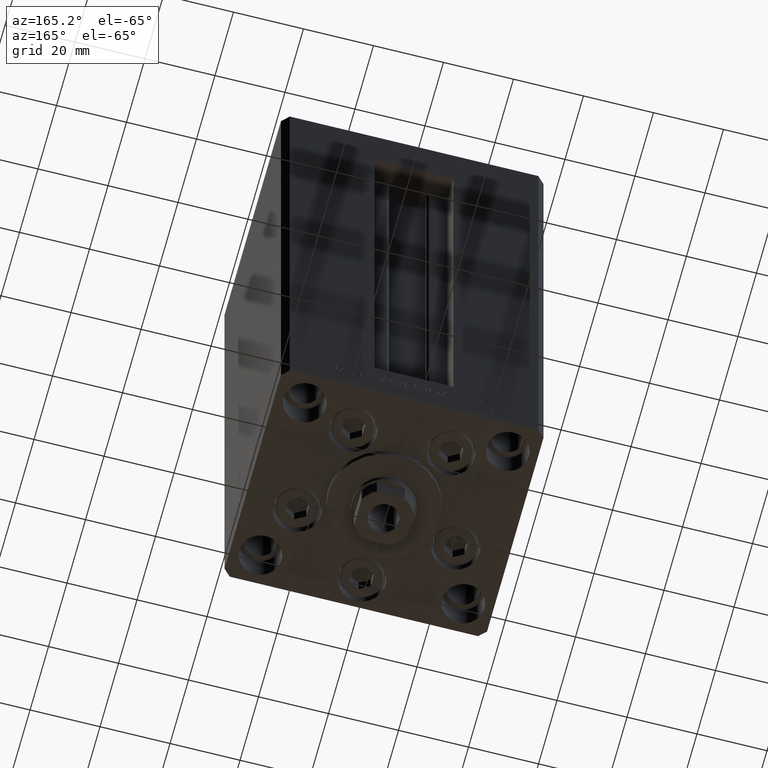
[diagram: clean part render]
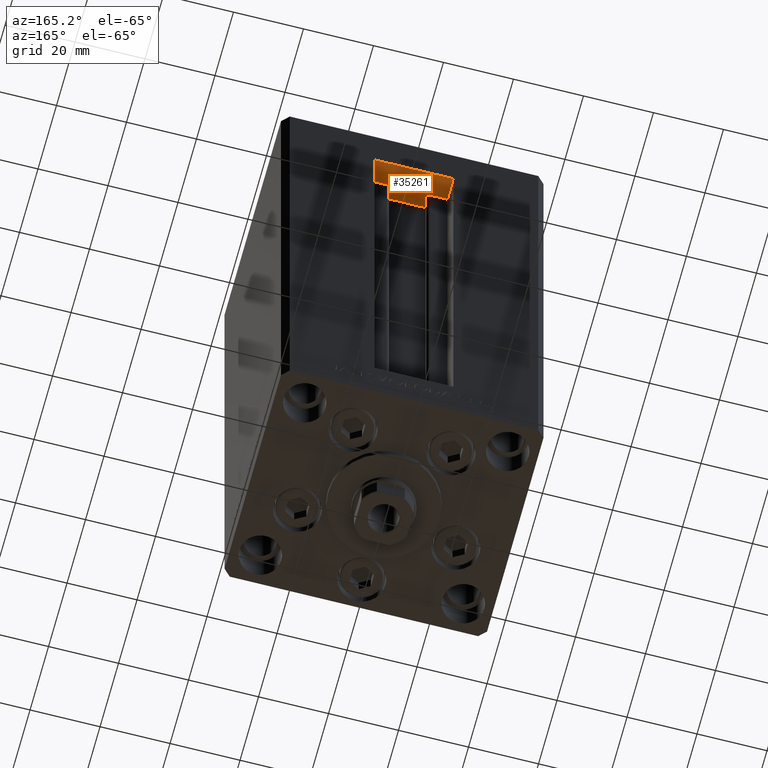
[diagram: same view with one face highlighted and labeled with its STEP entity id]
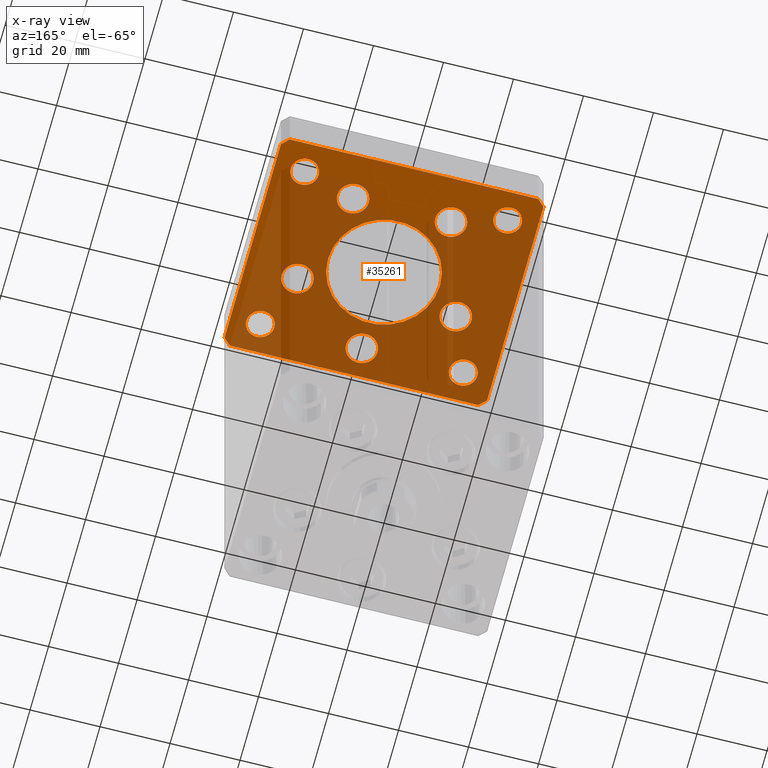
[diagram: x-ray of the same camera — body ghosted, the highlighted face saturated]
A machine part, auxiliary view. The second image highlights one B-rep face of the part: STEP entity #35261.
The next image is the same camera in x-ray: the body ghosted, the highlighted face saturated — about 77% of this face is hidden behind the body in this view.
In plain terms, the highlighted planar face has unit normal (0, 0, 1).
Its self-contained STEP definition (entity closure, byte-faithful):
#49 = AXIS2_PLACEMENT_3D ( 'NONE', #26392, #18693, #46546 ) ;
#139 = CARTESIAN_POINT ( 'NONE',  ( 22.62741699796951877, -8.000000000000000000, -15.00000000000000000 ) ) ;
#154 = VERTEX_POINT ( 'NONE', #37610 ) ;
#199 = EDGE_CURVE ( 'NONE', #5427, #10431, #48933, .T. ) ;
#204 = EDGE_LOOP ( 'NONE', ( #32912, #45288 ) ) ;
#280 = DIRECTION ( 'NONE',  ( -1.000000000000000000, 0.000000000000000000, 0.000000000000000000 ) ) ;
#317 = CARTESIAN_POINT ( 'NONE',  ( -37.49999999999998579, -30.50000000000001421, -15.00000000000000000 ) ) ;
#909 = CARTESIAN_POINT ( 'NONE',  ( 37.49999999999992184, 30.50000000000001066, -15.00000000000000000 ) ) ;
#1202 = DIRECTION ( 'NONE',  ( 1.000000000000000000, 0.000000000000000000, 0.000000000000000000 ) ) ;
#1955 = EDGE_LOOP ( 'NONE', ( #11314, #47684 ) ) ;
#2039 = AXIS2_PLACEMENT_3D ( 'NONE', #139, #48379, #29602 ) ;
#2178 = LINE ( 'NONE', #2912, #39504 ) ;
#2912 = CARTESIAN_POINT ( 'NONE',  ( -35.49999999999998579, -32.50000000000001421, -15.00000000000000000 ) ) ;
#3170 = CARTESIAN_POINT ( 'NONE',  ( -35.50000000000002842, 32.49999999999999289, -15.00000000000000000 ) ) ;
#3202 = AXIS2_PLACEMENT_3D ( 'NONE', #6674, #21777, #36882 ) ;
#3216 = DIRECTION ( 'NONE',  ( 0.000000000000000000, 0.000000000000000000, 1.000000000000000000 ) ) ;
#3297 = ORIENTED_EDGE ( 'NONE', *, *, #4335, .F. ) ;
#3570 = ORIENTED_EDGE ( 'NONE', *, *, #3999, .F. ) ;
#3633 = CARTESIAN_POINT ( 'NONE',  ( 35.50000000000000711, -32.50000000000000711, -15.00000000000000000 ) ) ;
#3698 = LINE ( 'NONE', #41801, #47641 ) ;
#3887 = ORIENTED_EDGE ( 'NONE', *, *, #29686, .F. ) ;
#3968 = DIRECTION ( 'NONE',  ( 0.000000000000000000, -0.000000000000000000, -1.000000000000000000 ) ) ;
#3999 = EDGE_CURVE ( 'NONE', #154, #41347, #8752, .T. ) ;
#4009 = CIRCLE ( 'NONE', #49, 16.00000000000000000 ) ;
#4069 = CARTESIAN_POINT ( 'NONE',  ( -27.12741699796951877, -8.000000000000005329, -15.00000000000000000 ) ) ;
#4335 = EDGE_CURVE ( 'NONE', #47496, #46773, #12701, .T. ) ;
#4649 = CARTESIAN_POINT ( 'NONE',  ( 35.49999999999992184, 32.50000000000000711, -15.00000000000000000 ) ) ;
#4850 = VERTEX_POINT ( 'NONE', #22326 ) ;
#5427 = VERTEX_POINT ( 'NONE', #47354 ) ;
#5437 = VERTEX_POINT ( 'NONE', #42923 ) ;
#5804 = CARTESIAN_POINT ( 'NONE',  ( -33.00000000000000711, -23.99999999999999289, -15.00000000000000000 ) ) ;
#5875 = CARTESIAN_POINT ( 'NONE',  ( 2.939152317953647500E-15, -24.00000000000000000, -15.00000000000000000 ) ) ;
#5935 = VERTEX_POINT ( 'NONE', #44205 ) ;
#5945 = EDGE_CURVE ( 'NONE', #41347, #154, #35569, .T. ) ;
#5983 = CARTESIAN_POINT ( 'NONE',  ( -25.00000000000001066, 24.00000000000000711, -15.00000000000000000 ) ) ;
#6285 = EDGE_LOOP ( 'NONE', ( #12722, #39286 ) ) ;
#6510 = CARTESIAN_POINT ( 'NONE',  ( 29.00000000000001066, 24.00000000000000711, -15.00000000000000000 ) ) ;
#6674 = CARTESIAN_POINT ( 'NONE',  ( -13.99106857963322703, 19.49999999999999645, -15.00000000000000000 ) ) ;
#6801 = CIRCLE ( 'NONE', #48725, 4.499999999999999112 ) ;
#6811 = FACE_BOUND ( 'NONE', #9330, .T. ) ;
#7101 = CARTESIAN_POINT ( 'NONE',  ( -33.00000000000000711, 24.00000000000000711, -15.00000000000000000 ) ) ;
#7165 = CARTESIAN_POINT ( 'NONE',  ( 22.62741699796951877, -8.000000000000000000, -15.00000000000000000 ) ) ;
#7413 = DIRECTION ( 'NONE',  ( 0.7071067811865487940, 0.7071067811865463515, 0.000000000000000000 ) ) ;
#7531 = AXIS2_PLACEMENT_3D ( 'NONE', #41003, #26426, #18977 ) ;
#8018 = EDGE_CURVE ( 'NONE', #32566, #15179, #24560, .T. ) ;
#8339 = VECTOR ( 'NONE', #41915, 1000.000000000000000 ) ;
#8420 = DIRECTION ( 'NONE',  ( 4.550094363217855288E-16, -1.000000000000000000, 0.000000000000000000 ) ) ;
#8600 = VERTEX_POINT ( 'NONE', #44217 ) ;
#8641 = CARTESIAN_POINT ( 'NONE',  ( -13.99106857963322703, 19.49999999999999645, -15.00000000000000000 ) ) ;
#8672 = DIRECTION ( 'NONE',  ( 1.000000000000000000, 0.000000000000000000, 0.000000000000000000 ) ) ;
#8752 = CIRCLE ( 'NONE', #34070, 4.500000000000001776 ) ;
#8964 = DIRECTION ( 'NONE',  ( 0.000000000000000000, -0.000000000000000000, -1.000000000000000000 ) ) ;
#9173 = EDGE_CURVE ( 'NONE', #9591, #32107, #15886, .T. ) ;
#9218 = EDGE_CURVE ( 'NONE', #40403, #25799, #3698, .T. ) ;
#9330 = EDGE_LOOP ( 'NONE', ( #34926, #46091 ) ) ;
#9374 = EDGE_LOOP ( 'NONE', ( #44974, #10615 ) ) ;
#9457 = AXIS2_PLACEMENT_3D ( 'NONE', #48967, #40824, #29222 ) ;
#9591 = VERTEX_POINT ( 'NONE', #7101 ) ;
#10427 = VERTEX_POINT ( 'NONE', #909 ) ;
#10431 = VERTEX_POINT ( 'NONE', #31598 ) ;
#10562 = AXIS2_PLACEMENT_3D ( 'NONE', #18974, #42876, #33839 ) ;
#10615 = ORIENTED_EDGE ( 'NONE', *, *, #41637, .F. ) ;
#11103 = CARTESIAN_POINT ( 'NONE',  ( 29.00000000000001066, -23.99999999999999289, -15.00000000000000000 ) ) ;
#11241 = EDGE_CURVE ( 'NONE', #40088, #40403, #2178, .T. ) ;
#11277 = ORIENTED_EDGE ( 'NONE', *, *, #8018, .F. ) ;
#11314 = ORIENTED_EDGE ( 'NONE', *, *, #21323, .F. ) ;
#11318 = EDGE_CURVE ( 'NONE', #10427, #13959, #25952, .T. ) ;
#11394 = DIRECTION ( 'NONE',  ( 1.000000000000000000, 0.000000000000000000, 0.000000000000000000 ) ) ;
#11510 = CARTESIAN_POINT ( 'NONE',  ( 0.000000000000000000, 0.000000000000000000, -15.00000000000000000 ) ) ;
#11902 = DIRECTION ( 'NONE',  ( -0.000000000000000000, -0.000000000000000000, -1.000000000000000000 ) ) ;
#12074 = EDGE_LOOP ( 'NONE', ( #45242, #24095 ) ) ;
#12701 = CIRCLE ( 'NONE', #40374, 4.000000000000003553 ) ;
#12722 = ORIENTED_EDGE ( 'NONE', *, *, #48389, .T. ) ;
#13023 = EDGE_CURVE ( 'NONE', #21702, #40799, #42712, .T. ) ;
#13249 = EDGE_CURVE ( 'NONE', #10431, #5427, #4009, .T. ) ;
#13416 = DIRECTION ( 'NONE',  ( -1.000000000000000000, 0.000000000000000000, 0.000000000000000000 ) ) ;
#13863 = VERTEX_POINT ( 'NONE', #3170 ) ;
#13959 = VERTEX_POINT ( 'NONE', #4649 ) ;
#14208 = AXIS2_PLACEMENT_3D ( 'NONE', #5875, #25197, #40022 ) ;
#14721 = FACE_BOUND ( 'NONE', #204, .T. ) ;
#15179 = VERTEX_POINT ( 'NONE', #25673 ) ;
#15254 = DIRECTION ( 'NONE',  ( -1.000000000000000000, 0.000000000000000000, 0.000000000000000000 ) ) ;
#15331 = CIRCLE ( 'NONE', #22454, 4.499999999999997335 ) ;
#15387 = DIRECTION ( 'NONE',  ( -0.7071067811865426878, -0.7071067811865524577, 0.000000000000000000 ) ) ;
#15442 = CARTESIAN_POINT ( 'NONE',  ( 18.49106857963322881, 19.50000000000000000, -15.00000000000000000 ) ) ;
#15886 = CIRCLE ( 'NONE', #29476, 4.000000000000000000 ) ;
#15902 = DIRECTION ( 'NONE',  ( 0.7071067811865474617, -0.7071067811865474617, 0.000000000000000000 ) ) ;
#16656 = EDGE_CURVE ( 'NONE', #23756, #47499, #20702, .T. ) ;
#17153 = EDGE_CURVE ( 'NONE', #25799, #10427, #48162, .T. ) ;
#17191 = DIRECTION ( 'NONE',  ( 1.000000000000000000, 0.000000000000000000, 0.000000000000000000 ) ) ;
#17200 = AXIS2_PLACEMENT_3D ( 'NONE', #11510, #37018, #45155 ) ;
#17775 = EDGE_LOOP ( 'NONE', ( #36507, #36366, #18763, #3887, #33393, #19366, #39049, #24862 ) ) ;
#17989 = EDGE_LOOP ( 'NONE', ( #3297, #25430 ) ) ;
#18546 = DIRECTION ( 'NONE',  ( 1.000000000000000000, 0.000000000000000000, 0.000000000000000000 ) ) ;
#18679 = AXIS2_PLACEMENT_3D ( 'NONE', #6510, #33258, #28573 ) ;
#18693 = DIRECTION ( 'NONE',  ( 0.000000000000000000, -0.000000000000000000, -1.000000000000000000 ) ) ;
#18742 = CARTESIAN_POINT ( 'NONE',  ( 37.49999999999992184, 30.50000000000001066, -15.00000000000000000 ) ) ;
#18748 = CIRCLE ( 'NONE', #48755, 4.000000000000003553 ) ;
#18759 = CARTESIAN_POINT ( 'NONE',  ( -18.49106857963322526, 19.49999999999999645, -15.00000000000000000 ) ) ;
#18763 = ORIENTED_EDGE ( 'NONE', *, *, #19873, .F. ) ;
#18974 = CARTESIAN_POINT ( 'NONE',  ( 13.99106857963322348, 19.50000000000000000, -15.00000000000000000 ) ) ;
#18977 = DIRECTION ( 'NONE',  ( 1.000000000000000000, 0.000000000000000000, 0.000000000000000000 ) ) ;
#19266 = ORIENTED_EDGE ( 'NONE', *, *, #13249, .F. ) ;
#19366 = ORIENTED_EDGE ( 'NONE', *, *, #17153, .F. ) ;
#19716 = ORIENTED_EDGE ( 'NONE', *, *, #46776, .F. ) ;
#19873 = EDGE_CURVE ( 'NONE', #13863, #47672, #29758, .T. ) ;
#20025 = CIRCLE ( 'NONE', #30322, 4.000000000000003553 ) ;
#20702 = CIRCLE ( 'NONE', #33366, 3.999999999999996447 ) ;
#20842 = DIRECTION ( 'NONE',  ( 1.000000000000000000, 0.000000000000000000, 0.000000000000000000 ) ) ;
#21323 = EDGE_CURVE ( 'NONE', #36529, #40761, #15331, .T. ) ;
#21702 = VERTEX_POINT ( 'NONE', #38543 ) ;
#21708 = CARTESIAN_POINT ( 'NONE',  ( 37.50000000000001421, -30.50000000000000711, -15.00000000000000000 ) ) ;
#21777 = DIRECTION ( 'NONE',  ( 0.000000000000000000, -0.000000000000000000, -1.000000000000000000 ) ) ;
#21918 = PLANE ( 'NONE',  #17200 ) ;
#22094 = CARTESIAN_POINT ( 'NONE',  ( -35.50000000000002842, 32.49999999999999289, -15.00000000000000000 ) ) ;
#22169 = FACE_BOUND ( 'NONE', #9374, .T. ) ;
#22278 = CARTESIAN_POINT ( 'NONE',  ( -29.00000000000001066, 24.00000000000000711, -15.00000000000000000 ) ) ;
#22279 = DIRECTION ( 'NONE',  ( 0.000000000000000000, -0.000000000000000000, -1.000000000000000000 ) ) ;
#22326 = CARTESIAN_POINT ( 'NONE',  ( 33.00000000000001421, 24.00000000000000711, -15.00000000000000000 ) ) ;
#22416 = FACE_OUTER_BOUND ( 'NONE', #17775, .T. ) ;
#22454 = AXIS2_PLACEMENT_3D ( 'NONE', #30941, #38352, #27235 ) ;
#22548 = EDGE_CURVE ( 'NONE', #40761, #36529, #32656, .T. ) ;
#22893 = LINE ( 'NONE', #26851, #8339 ) ;
#22917 = CARTESIAN_POINT ( 'NONE',  ( 37.50000000000001421, -30.50000000000000711, -15.00000000000000000 ) ) ;
#23571 = EDGE_CURVE ( 'NONE', #46773, #47496, #20025, .T. ) ;
#23756 = VERTEX_POINT ( 'NONE', #41846 ) ;
#23806 = AXIS2_PLACEMENT_3D ( 'NONE', #45286, #3968, #11394 ) ;
#24095 = ORIENTED_EDGE ( 'NONE', *, *, #9173, .T. ) ;
#24346 = EDGE_CURVE ( 'NONE', #47499, #23756, #47703, .T. ) ;
#24380 = EDGE_CURVE ( 'NONE', #40799, #21702, #31134, .T. ) ;
#24560 = CIRCLE ( 'NONE', #3202, 4.499999999999999112 ) ;
#24862 = ORIENTED_EDGE ( 'NONE', *, *, #11241, .F. ) ;
#24991 = CIRCLE ( 'NONE', #2039, 4.500000000000000888 ) ;
#25197 = DIRECTION ( 'NONE',  ( 0.000000000000000000, -0.000000000000000000, -1.000000000000000000 ) ) ;
#25430 = ORIENTED_EDGE ( 'NONE', *, *, #23571, .F. ) ;
#25443 = DIRECTION ( 'NONE',  ( -1.478780668045802821E-15, 1.000000000000000000, 0.000000000000000000 ) ) ;
#25673 = CARTESIAN_POINT ( 'NONE',  ( -9.491068579633228808, 19.49999999999999645, -15.00000000000000000 ) ) ;
#25799 = VERTEX_POINT ( 'NONE', #22917 ) ;
#25952 = LINE ( 'NONE', #18742, #47392 ) ;
#26227 = DIRECTION ( 'NONE',  ( -0.000000000000000000, -0.000000000000000000, -1.000000000000000000 ) ) ;
#26386 = FACE_BOUND ( 'NONE', #1955, .T. ) ;
#26392 = CARTESIAN_POINT ( 'NONE',  ( 0.000000000000000000, 0.000000000000000000, -15.00000000000000000 ) ) ;
#26426 = DIRECTION ( 'NONE',  ( 0.000000000000000000, 0.000000000000000000, 1.000000000000000000 ) ) ;
#26473 = DIRECTION ( 'NONE',  ( -1.000000000000000000, 0.000000000000000000, 0.000000000000000000 ) ) ;
#26851 = CARTESIAN_POINT ( 'NONE',  ( 35.49999999999992184, 32.50000000000000711, -15.00000000000000000 ) ) ;
#27030 = EDGE_CURVE ( 'NONE', #5437, #40088, #41640, .T. ) ;
#27123 = AXIS2_PLACEMENT_3D ( 'NONE', #39656, #8964, #20842 ) ;
#27235 = DIRECTION ( 'NONE',  ( 1.000000000000000000, 0.000000000000000000, 0.000000000000000000 ) ) ;
#27367 = AXIS2_PLACEMENT_3D ( 'NONE', #7165, #22279, #18546 ) ;
#28573 = DIRECTION ( 'NONE',  ( 1.000000000000000000, 0.000000000000000000, 0.000000000000000000 ) ) ;
#28588 = CARTESIAN_POINT ( 'NONE',  ( 33.00000000000001421, -23.99999999999999289, -15.00000000000000000 ) ) ;
#28682 = CARTESIAN_POINT ( 'NONE',  ( 25.00000000000000711, -23.99999999999999289, -15.00000000000000000 ) ) ;
#28951 = EDGE_LOOP ( 'NONE', ( #19266, #29673 ) ) ;
#29222 = DIRECTION ( 'NONE',  ( 1.000000000000000000, 0.000000000000000000, 0.000000000000000000 ) ) ;
#29356 = FACE_BOUND ( 'NONE', #34755, .T. ) ;
#29476 = AXIS2_PLACEMENT_3D ( 'NONE', #22278, #3216, #40826 ) ;
#29602 = DIRECTION ( 'NONE',  ( 1.000000000000000000, 0.000000000000000000, 0.000000000000000000 ) ) ;
#29673 = ORIENTED_EDGE ( 'NONE', *, *, #199, .F. ) ;
#29686 = EDGE_CURVE ( 'NONE', #13959, #13863, #22893, .T. ) ;
#29758 = LINE ( 'NONE', #22094, #33477 ) ;
#30322 = AXIS2_PLACEMENT_3D ( 'NONE', #47308, #43364, #13416 ) ;
#30462 = CIRCLE ( 'NONE', #7531, 4.000000000000000000 ) ;
#30609 = VERTEX_POINT ( 'NONE', #37268 ) ;
#30872 = EDGE_CURVE ( 'NONE', #30609, #4850, #44734, .T. ) ;
#30941 = CARTESIAN_POINT ( 'NONE',  ( -22.62741699796951877, -8.000000000000005329, -15.00000000000000000 ) ) ;
#30966 = CARTESIAN_POINT ( 'NONE',  ( 2.939152317953647500E-15, -24.00000000000000000, -15.00000000000000000 ) ) ;
#31134 = CIRCLE ( 'NONE', #10562, 4.500000000000005329 ) ;
#31435 = LINE ( 'NONE', #38854, #45554 ) ;
#31598 = CARTESIAN_POINT ( 'NONE',  ( 16.00000000000000000, 0.000000000000000000, -15.00000000000000000 ) ) ;
#31811 = DIRECTION ( 'NONE',  ( 0.000000000000000000, 0.000000000000000000, 1.000000000000000000 ) ) ;
#32107 = VERTEX_POINT ( 'NONE', #5983 ) ;
#32566 = VERTEX_POINT ( 'NONE', #18759 ) ;
#32656 = CIRCLE ( 'NONE', #27123, 4.499999999999997335 ) ;
#32912 = ORIENTED_EDGE ( 'NONE', *, *, #24380, .F. ) ;
#33258 = DIRECTION ( 'NONE',  ( 0.000000000000000000, 0.000000000000000000, 1.000000000000000000 ) ) ;
#33366 = AXIS2_PLACEMENT_3D ( 'NONE', #33950, #11902, #280 ) ;
#33393 = ORIENTED_EDGE ( 'NONE', *, *, #11318, .F. ) ;
#33477 = VECTOR ( 'NONE', #15387, 1000.000000000000000 ) ;
#33839 = DIRECTION ( 'NONE',  ( 1.000000000000000000, 0.000000000000000000, 0.000000000000000000 ) ) ;
#33950 = CARTESIAN_POINT ( 'NONE',  ( -29.00000000000001066, -23.99999999999999289, -15.00000000000000000 ) ) ;
#34070 = AXIS2_PLACEMENT_3D ( 'NONE', #30966, #42567, #8672 ) ;
#34755 = EDGE_LOOP ( 'NONE', ( #36594, #3570 ) ) ;
#34926 = ORIENTED_EDGE ( 'NONE', *, *, #16656, .F. ) ;
#35128 = DIRECTION ( 'NONE',  ( 0.000000000000000000, -0.000000000000000000, -1.000000000000000000 ) ) ;
#35261 = ADVANCED_FACE ( 'NONE', ( #41694, #26386, #29356, #22169, #14721, #37266, #40717, #41210, #22416, #37505, #6811 ), #21918, .F. ) ;
#35569 = CIRCLE ( 'NONE', #14208, 4.500000000000001776 ) ;
#36259 = CARTESIAN_POINT ( 'NONE',  ( 29.00000000000001066, 24.00000000000000711, -15.00000000000000000 ) ) ;
#36366 = ORIENTED_EDGE ( 'NONE', *, *, #47661, .F. ) ;
#36507 = ORIENTED_EDGE ( 'NONE', *, *, #27030, .F. ) ;
#36529 = VERTEX_POINT ( 'NONE', #48548 ) ;
#36539 = VECTOR ( 'NONE', #25443, 1000.000000000000000 ) ;
#36594 = ORIENTED_EDGE ( 'NONE', *, *, #5945, .F. ) ;
#36882 = DIRECTION ( 'NONE',  ( 1.000000000000000000, 0.000000000000000000, 0.000000000000000000 ) ) ;
#37018 = DIRECTION ( 'NONE',  ( -0.000000000000000000, 0.000000000000000000, 1.000000000000000000 ) ) ;
#37266 = FACE_BOUND ( 'NONE', #43158, .T. ) ;
#37268 = CARTESIAN_POINT ( 'NONE',  ( 25.00000000000000711, 24.00000000000000711, -15.00000000000000000 ) ) ;
#37505 = FACE_BOUND ( 'NONE', #17989, .T. ) ;
#37526 = VECTOR ( 'NONE', #15902, 1000.000000000000114 ) ;
#37543 = CARTESIAN_POINT ( 'NONE',  ( -29.00000000000001066, -23.99999999999999289, -15.00000000000000000 ) ) ;
#37610 = CARTESIAN_POINT ( 'NONE',  ( -4.499999999999999112, -24.00000000000000000, -15.00000000000000000 ) ) ;
#37793 = DIRECTION ( 'NONE',  ( -0.000000000000000000, -0.000000000000000000, -1.000000000000000000 ) ) ;
#37812 = DIRECTION ( 'NONE',  ( -0.7071067811865482389, 0.7071067811865469066, 0.000000000000000000 ) ) ;
#38352 = DIRECTION ( 'NONE',  ( 0.000000000000000000, -0.000000000000000000, -1.000000000000000000 ) ) ;
#38543 = CARTESIAN_POINT ( 'NONE',  ( 9.491068579633218150, 19.50000000000000000, -15.00000000000000000 ) ) ;
#38854 = CARTESIAN_POINT ( 'NONE',  ( -37.50000000000001421, 30.49999999999998579, -15.00000000000000000 ) ) ;
#39049 = ORIENTED_EDGE ( 'NONE', *, *, #9218, .F. ) ;
#39286 = ORIENTED_EDGE ( 'NONE', *, *, #30872, .T. ) ;
#39504 = VECTOR ( 'NONE', #47449, 1000.000000000000000 ) ;
#39656 = CARTESIAN_POINT ( 'NONE',  ( -22.62741699796951877, -8.000000000000005329, -15.00000000000000000 ) ) ;
#39813 = AXIS2_PLACEMENT_3D ( 'NONE', #37543, #37793, #15254 ) ;
#39854 = CARTESIAN_POINT ( 'NONE',  ( -35.49999999999998579, -32.50000000000001421, -15.00000000000000000 ) ) ;
#40022 = DIRECTION ( 'NONE',  ( 1.000000000000000000, 0.000000000000000000, 0.000000000000000000 ) ) ;
#40088 = VERTEX_POINT ( 'NONE', #39854 ) ;
#40374 = AXIS2_PLACEMENT_3D ( 'NONE', #11103, #26227, #26473 ) ;
#40403 = VERTEX_POINT ( 'NONE', #3633 ) ;
#40419 = EDGE_CURVE ( 'NONE', #32107, #9591, #30462, .T. ) ;
#40717 = FACE_BOUND ( 'NONE', #6285, .T. ) ;
#40761 = VERTEX_POINT ( 'NONE', #4069 ) ;
#40799 = VERTEX_POINT ( 'NONE', #15442 ) ;
#40824 = DIRECTION ( 'NONE',  ( 0.000000000000000000, -0.000000000000000000, -1.000000000000000000 ) ) ;
#40826 = DIRECTION ( 'NONE',  ( 1.000000000000000000, 0.000000000000000000, 0.000000000000000000 ) ) ;
#41003 = CARTESIAN_POINT ( 'NONE',  ( -29.00000000000001066, 24.00000000000000711, -15.00000000000000000 ) ) ;
#41021 = EDGE_CURVE ( 'NONE', #8600, #5935, #48657, .T. ) ;
#41210 = FACE_BOUND ( 'NONE', #12074, .T. ) ;
#41347 = VERTEX_POINT ( 'NONE', #41743 ) ;
#41637 = EDGE_CURVE ( 'NONE', #5935, #8600, #24991, .T. ) ;
#41640 = LINE ( 'NONE', #317, #37526 ) ;
#41694 = FACE_BOUND ( 'NONE', #28951, .T. ) ;
#41743 = CARTESIAN_POINT ( 'NONE',  ( 4.500000000000003553, -24.00000000000000000, -15.00000000000000000 ) ) ;
#41801 = CARTESIAN_POINT ( 'NONE',  ( 35.50000000000000711, -32.50000000000000711, -15.00000000000000000 ) ) ;
#41846 = CARTESIAN_POINT ( 'NONE',  ( -25.00000000000001066, -23.99999999999999289, -15.00000000000000000 ) ) ;
#41915 = DIRECTION ( 'NONE',  ( -1.000000000000000000, -1.954618001100629052E-16, 0.000000000000000000 ) ) ;
#42315 = CARTESIAN_POINT ( 'NONE',  ( -37.50000000000001421, 30.49999999999998579, -15.00000000000000000 ) ) ;
#42567 = DIRECTION ( 'NONE',  ( 0.000000000000000000, -0.000000000000000000, -1.000000000000000000 ) ) ;
#42712 = CIRCLE ( 'NONE', #23806, 4.500000000000005329 ) ;
#42876 = DIRECTION ( 'NONE',  ( 0.000000000000000000, -0.000000000000000000, -1.000000000000000000 ) ) ;
#42923 = CARTESIAN_POINT ( 'NONE',  ( -37.49999999999998579, -30.50000000000001421, -15.00000000000000000 ) ) ;
#43158 = EDGE_LOOP ( 'NONE', ( #19716, #11277 ) ) ;
#43364 = DIRECTION ( 'NONE',  ( -0.000000000000000000, -0.000000000000000000, -1.000000000000000000 ) ) ;
#44205 = CARTESIAN_POINT ( 'NONE',  ( 18.12741699796951877, -8.000000000000000000, -15.00000000000000000 ) ) ;
#44217 = CARTESIAN_POINT ( 'NONE',  ( 27.12741699796952233, -8.000000000000000000, -15.00000000000000000 ) ) ;
#44734 = CIRCLE ( 'NONE', #18679, 4.000000000000003553 ) ;
#44974 = ORIENTED_EDGE ( 'NONE', *, *, #41021, .F. ) ;
#45155 = DIRECTION ( 'NONE',  ( 1.000000000000000000, 0.000000000000000000, 0.000000000000000000 ) ) ;
#45242 = ORIENTED_EDGE ( 'NONE', *, *, #40419, .T. ) ;
#45286 = CARTESIAN_POINT ( 'NONE',  ( 13.99106857963322348, 19.50000000000000000, -15.00000000000000000 ) ) ;
#45288 = ORIENTED_EDGE ( 'NONE', *, *, #13023, .F. ) ;
#45554 = VECTOR ( 'NONE', #8420, 1000.000000000000000 ) ;
#46091 = ORIENTED_EDGE ( 'NONE', *, *, #24346, .F. ) ;
#46546 = DIRECTION ( 'NONE',  ( 1.000000000000000000, 0.000000000000000000, 0.000000000000000000 ) ) ;
#46773 = VERTEX_POINT ( 'NONE', #28682 ) ;
#46776 = EDGE_CURVE ( 'NONE', #15179, #32566, #6801, .T. ) ;
#47308 = CARTESIAN_POINT ( 'NONE',  ( 29.00000000000001066, -23.99999999999999289, -15.00000000000000000 ) ) ;
#47354 = CARTESIAN_POINT ( 'NONE',  ( -16.00000000000000000, 1.959434878635764737E-15, -15.00000000000000000 ) ) ;
#47392 = VECTOR ( 'NONE', #37812, 999.9999999999998863 ) ;
#47449 = DIRECTION ( 'NONE',  ( 1.000000000000000000, 9.773090005503140331E-17, 0.000000000000000000 ) ) ;
#47496 = VERTEX_POINT ( 'NONE', #28588 ) ;
#47499 = VERTEX_POINT ( 'NONE', #5804 ) ;
#47641 = VECTOR ( 'NONE', #7413, 1000.000000000000000 ) ;
#47661 = EDGE_CURVE ( 'NONE', #47672, #5437, #31435, .T. ) ;
#47672 = VERTEX_POINT ( 'NONE', #42315 ) ;
#47684 = ORIENTED_EDGE ( 'NONE', *, *, #22548, .F. ) ;
#47703 = CIRCLE ( 'NONE', #39813, 3.999999999999996447 ) ;
#48162 = LINE ( 'NONE', #21708, #36539 ) ;
#48379 = DIRECTION ( 'NONE',  ( 0.000000000000000000, -0.000000000000000000, -1.000000000000000000 ) ) ;
#48389 = EDGE_CURVE ( 'NONE', #4850, #30609, #18748, .T. ) ;
#48548 = CARTESIAN_POINT ( 'NONE',  ( -18.12741699796952233, -8.000000000000005329, -15.00000000000000000 ) ) ;
#48657 = CIRCLE ( 'NONE', #27367, 4.500000000000000888 ) ;
#48725 = AXIS2_PLACEMENT_3D ( 'NONE', #8641, #35128, #1202 ) ;
#48755 = AXIS2_PLACEMENT_3D ( 'NONE', #36259, #31811, #17191 ) ;
#48933 = CIRCLE ( 'NONE', #9457, 16.00000000000000000 ) ;
#48967 = CARTESIAN_POINT ( 'NONE',  ( 0.000000000000000000, 0.000000000000000000, -15.00000000000000000 ) ) ;